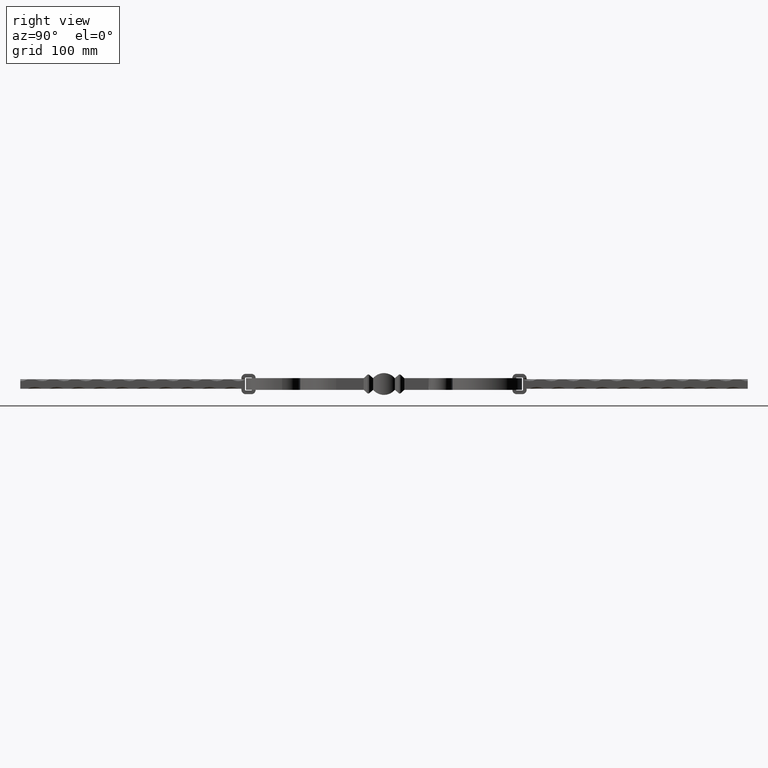
[diagram: clean part render]
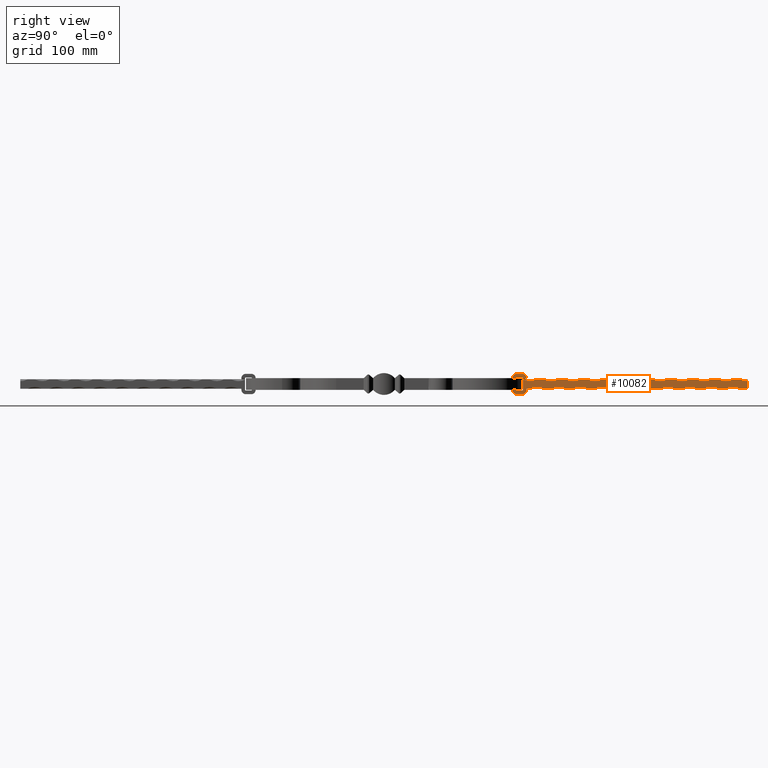
[diagram: same view with one face highlighted and labeled with its STEP entity id]
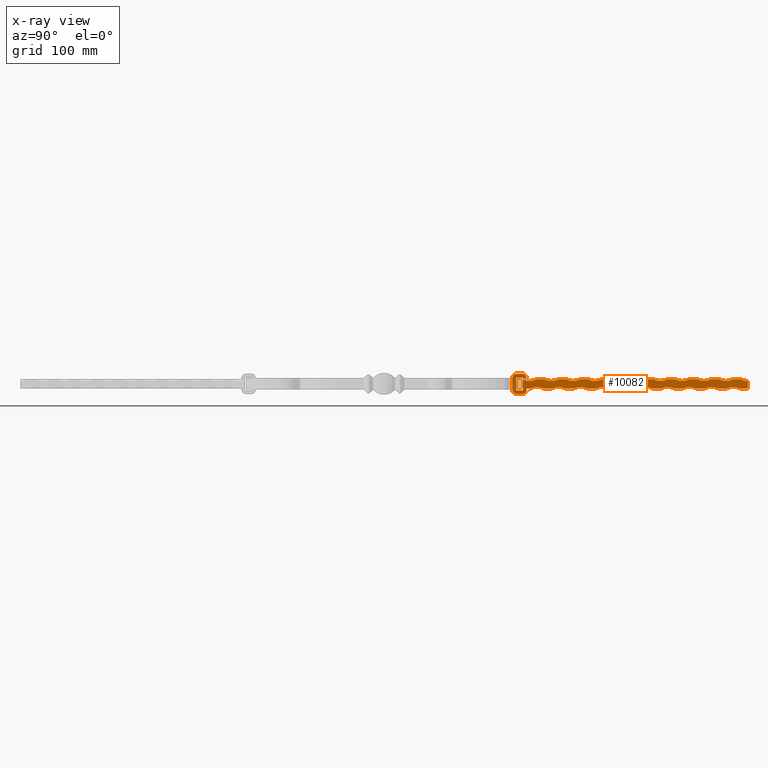
[diagram: x-ray of the same camera — body ghosted, the highlighted face saturated]
A machine part, right view. The second image highlights one B-rep face of the part: STEP entity #10082.
The next image is the same camera in x-ray: the body ghosted, the highlighted face saturated — about 0% of this face is hidden behind the body in this view.
In plain terms, the highlighted planar face has unit normal (1, 0, 0).
Its self-contained STEP definition (entity closure, byte-faithful):
#92 = LINE ( 'NONE', #16200, #7591 ) ;
#164 = VECTOR ( 'NONE', #18153, 1000.000000000000000 ) ;
#273 = ORIENTED_EDGE ( 'NONE', *, *, #17884, .F. ) ;
#304 = VERTEX_POINT ( 'NONE', #8795 ) ;
#308 = CARTESIAN_POINT ( 'NONE',  ( 6.499999999999999112, 500.0000000000000000, -6.499999999999999112 ) ) ;
#309 = VERTEX_POINT ( 'NONE', #3059 ) ;
#368 = ORIENTED_EDGE ( 'NONE', *, *, #13722, .F. ) ;
#378 = CIRCLE ( 'NONE', #2030, 21.25000000000003197 ) ;
#396 = VECTOR ( 'NONE', #4594, 1000.000000000000000 ) ;
#416 = EDGE_CURVE ( 'NONE', #17650, #3328, #7589, .T. ) ;
#487 = DIRECTION ( 'NONE',  ( 0.000000000000000000, 0.000000000000000000, -1.000000000000000000 ) ) ;
#564 = VECTOR ( 'NONE', #15362, 1000.000000000000000 ) ;
#567 = EDGE_CURVE ( 'NONE', #17401, #8542, #5588, .T. ) ;
#614 = CARTESIAN_POINT ( 'NONE',  ( 6.500000000000000888, 260.0000000000000000, 25.25000000000002842 ) ) ;
#667 = CARTESIAN_POINT ( 'NONE',  ( 6.500000000000000888, 500.0000000000000000, 6.500000000000000888 ) ) ;
#763 = ORIENTED_EDGE ( 'NONE', *, *, #11529, .F. ) ;
#780 = DIRECTION ( 'NONE',  ( -0.000000000000000000, -1.000000000000000000, -0.000000000000000000 ) ) ;
#858 = DIRECTION ( 'NONE',  ( 1.000000000000000000, 0.000000000000000000, 0.000000000000000000 ) ) ;
#925 = DIRECTION ( 'NONE',  ( -0.000000000000000000, -1.000000000000000000, -0.000000000000000000 ) ) ;
#1034 = CARTESIAN_POINT ( 'NONE',  ( 6.500000000000000000, 182.4038591061661805, -14.00000000000000178 ) ) ;
#1115 = CARTESIAN_POINT ( 'NONE',  ( 6.499999999999999112, 500.0000000000000000, -6.499999999999999112 ) ) ;
#1147 = VERTEX_POINT ( 'NONE', #10471 ) ;
#1211 = CARTESIAN_POINT ( 'NONE',  ( 6.499999999999999112, 300.0000000000000000, -25.25000000000003908 ) ) ;
#1235 = VECTOR ( 'NONE', #8582, 1000.000000000000000 ) ;
#1277 = ORIENTED_EDGE ( 'NONE', *, *, #18056, .F. ) ;
#1347 = DIRECTION ( 'NONE',  ( 1.000000000000000000, 0.000000000000000000, 0.000000000000000000 ) ) ;
#1389 = ORIENTED_EDGE ( 'NONE', *, *, #8001, .F. ) ;
#1396 = DIRECTION ( 'NONE',  ( 0.000000000000000000, 0.000000000000000000, -1.000000000000000000 ) ) ;
#1411 = AXIS2_PLACEMENT_3D ( 'NONE', #16543, #12048, #16297 ) ;
#1448 = CARTESIAN_POINT ( 'NONE',  ( 6.500000000000000888, 309.9999999999999432, 6.500000000000000888 ) ) ;
#1465 = DIRECTION ( 'NONE',  ( -0.000000000000000000, -1.000000000000000000, -0.000000000000000000 ) ) ;
#1491 = LINE ( 'NONE', #3939, #14752 ) ;
#1498 = VERTEX_POINT ( 'NONE', #15806 ) ;
#1506 = DIRECTION ( 'NONE',  ( 0.000000000000000000, 0.000000000000000000, -1.000000000000000000 ) ) ;
#1532 = DIRECTION ( 'NONE',  ( -0.000000000000000000, -1.000000000000000000, -0.000000000000000000 ) ) ;
#1548 = AXIS2_PLACEMENT_3D ( 'NONE', #1211, #11310, #1396 ) ;
#1550 = AXIS2_PLACEMENT_3D ( 'NONE', #3457, #11886, #7634 ) ;
#1575 = ORIENTED_EDGE ( 'NONE', *, *, #14396, .F. ) ;
#1617 = EDGE_LOOP ( 'NONE', ( #1277, #6197, #12843, #4069, #5487, #10638, #9542, #16096, #7744, #273, #11700, #7489, #4845, #6135, #10949, #3824, #2807, #11192, #1738, #15982, #3793, #3463, #12977, #11033, #8383, #5293, #11889, #9149, #18072, #368, #14007, #13579, #4864, #12683, #17242, #763, #7396, #6739, #1575, #15759, #8364, #12914, #17792, #1389, #6667, #7869, #18007, #9477, #17836, #15506, #5671, #15949, #9959, #12417, #14146, #11680, #6149, #2638, #12049, #8210, #7768 ) ) ;
#1626 = VERTEX_POINT ( 'NONE', #15347 ) ;
#1725 = EDGE_CURVE ( 'NONE', #3201, #11484, #12629, .T. ) ;
#1731 = CARTESIAN_POINT ( 'NONE',  ( 6.500000000000000888, 300.0000000000000000, 6.500000000000000888 ) ) ;
#1738 = ORIENTED_EDGE ( 'NONE', *, *, #5768, .T. ) ;
#1900 = DIRECTION ( 'NONE',  ( -0.000000000000000000, -1.000000000000000000, -0.000000000000000000 ) ) ;
#1914 = EDGE_CURVE ( 'NONE', #11720, #7512, #15978, .T. ) ;
#1928 = VECTOR ( 'NONE', #7137, 1000.000000000000000 ) ;
#1961 = LINE ( 'NONE', #10326, #8998 ) ;
#1981 = VECTOR ( 'NONE', #14666, 1000.000000000000000 ) ;
#1985 = CARTESIAN_POINT ( 'NONE',  ( 6.499999999999999112, 480.0000000000000000, -25.25000000000003908 ) ) ;
#2011 = VERTEX_POINT ( 'NONE', #2064 ) ;
#2030 = AXIS2_PLACEMENT_3D ( 'NONE', #16607, #3913, #10890 ) ;
#2031 = AXIS2_PLACEMENT_3D ( 'NONE', #14628, #10321, #4766 ) ;
#2064 = CARTESIAN_POINT ( 'NONE',  ( 6.500000000000000888, 370.0000000000000000, 6.500000000000000888 ) ) ;
#2091 = CARTESIAN_POINT ( 'NONE',  ( 6.499999999999999112, 420.0000000000000000, -25.25000000000003908 ) ) ;
#2097 = EDGE_CURVE ( 'NONE', #1147, #17405, #18169, .T. ) ;
#2198 = DIRECTION ( 'NONE',  ( 1.000000000000000000, 0.000000000000000000, 0.000000000000000000 ) ) ;
#2219 = EDGE_CURVE ( 'NONE', #7716, #7897, #6406, .T. ) ;
#2234 = CIRCLE ( 'NONE', #1411, 21.25000000000003553 ) ;
#2302 = CARTESIAN_POINT ( 'NONE',  ( 6.500000000000000888, 209.9999999999999716, 6.500000000000000888 ) ) ;
#2303 = EDGE_CURVE ( 'NONE', #1498, #15634, #13742, .T. ) ;
#2310 = VECTOR ( 'NONE', #6007, 1000.000000000000000 ) ;
#2354 = CIRCLE ( 'NONE', #3211, 21.25000000000003197 ) ;
#2379 = CARTESIAN_POINT ( 'NONE',  ( 6.499999999999999112, 380.0000000000000000, -6.500000000000001776 ) ) ;
#2494 = CARTESIAN_POINT ( 'NONE',  ( 6.499999999999999112, 470.0000000000000000, -6.500000000000001776 ) ) ;
#2512 = VERTEX_POINT ( 'NONE', #14570 ) ;
#2520 = AXIS2_PLACEMENT_3D ( 'NONE', #5669, #11213, #11342 ) ;
#2557 = CARTESIAN_POINT ( 'NONE',  ( 6.499999999999999112, 500.0000000000000000, -6.499999999999999112 ) ) ;
#2636 = LINE ( 'NONE', #1034, #6374 ) ;
#2638 = ORIENTED_EDGE ( 'NONE', *, *, #416, .F. ) ;
#2663 = CARTESIAN_POINT ( 'NONE',  ( 6.500000000000000888, 191.0000000000000000, 5.999999999999970690 ) ) ;
#2685 = CARTESIAN_POINT ( 'NONE',  ( 6.500000000000000888, 240.0000000000000000, 6.500000000000000888 ) ) ;
#2702 = EDGE_CURVE ( 'NONE', #10097, #15033, #2234, .T. ) ;
#2704 = DIRECTION ( 'NONE',  ( 0.000000000000000000, 0.000000000000000000, -1.000000000000000000 ) ) ;
#2807 = ORIENTED_EDGE ( 'NONE', *, *, #3780, .T. ) ;
#2817 = DIRECTION ( 'NONE',  ( 0.000000000000000000, 0.000000000000000000, -1.000000000000000000 ) ) ;
#2961 = CARTESIAN_POINT ( 'NONE',  ( 6.500000000000000000, 176.4038591061661805, 8.000000000000000000 ) ) ;
#2967 = CARTESIAN_POINT ( 'NONE',  ( 6.500000000000000888, 380.0000000000000000, 25.25000000000002842 ) ) ;
#3059 = CARTESIAN_POINT ( 'NONE',  ( 6.500000000000000000, 191.0000000000000000, -7.999999999999996447 ) ) ;
#3072 = AXIS2_PLACEMENT_3D ( 'NONE', #10271, #7422, #8538 ) ;
#3120 = CARTESIAN_POINT ( 'NONE',  ( 6.499999999999999112, 500.0000000000000000, -6.499999999999999112 ) ) ;
#3137 = CARTESIAN_POINT ( 'NONE',  ( 6.500000000000000888, 410.0000000000000000, 25.25000000000002842 ) ) ;
#3149 = VERTEX_POINT ( 'NONE', #13308 ) ;
#3153 = CIRCLE ( 'NONE', #7262, 21.25000000000003197 ) ;
#3186 = CARTESIAN_POINT ( 'NONE',  ( 6.500000000000000000, 182.4038591061661805, -8.999999999999998224 ) ) ;
#3201 = VERTEX_POINT ( 'NONE', #13611 ) ;
#3211 = AXIS2_PLACEMENT_3D ( 'NONE', #7062, #9842, #2704 ) ;
#3241 = LINE ( 'NONE', #308, #1928 ) ;
#3280 = DIRECTION ( 'NONE',  ( 0.000000000000000000, 0.000000000000000000, -1.000000000000000000 ) ) ;
#3288 = AXIS2_PLACEMENT_3D ( 'NONE', #14763, #14640, #14574 ) ;
#3295 = VERTEX_POINT ( 'NONE', #6717 ) ;
#3323 = CARTESIAN_POINT ( 'NONE',  ( 6.499999999999999112, 500.0000000000000000, -6.499999999999999112 ) ) ;
#3328 = VERTEX_POINT ( 'NONE', #10931 ) ;
#3345 = CARTESIAN_POINT ( 'NONE',  ( 6.500000000000000000, 176.4038591061661805, 7.999999999999998224 ) ) ;
#3358 = VECTOR ( 'NONE', #11698, 1000.000000000000000 ) ;
#3367 = VECTOR ( 'NONE', #1465, 1000.000000000000000 ) ;
#3394 = CARTESIAN_POINT ( 'NONE',  ( 6.500000000000000888, 195.9684936844944332, 8.614070955305894728 ) ) ;
#3443 = LINE ( 'NONE', #13232, #12028 ) ;
#3457 = CARTESIAN_POINT ( 'NONE',  ( 6.500000000000000000, 182.4038591061661805, 7.999999999999998224 ) ) ;
#3463 = ORIENTED_EDGE ( 'NONE', *, *, #6758, .F. ) ;
#3502 = DIRECTION ( 'NONE',  ( 0.000000000000000000, 0.000000000000000000, -1.000000000000000000 ) ) ;
#3740 = CARTESIAN_POINT ( 'NONE',  ( 6.500000000000000888, 399.9999999999999432, 6.500000000000000888 ) ) ;
#3780 = EDGE_CURVE ( 'NONE', #13921, #3201, #2636, .T. ) ;
#3793 = ORIENTED_EDGE ( 'NONE', *, *, #18299, .F. ) ;
#3800 = VERTEX_POINT ( 'NONE', #3740 ) ;
#3824 = ORIENTED_EDGE ( 'NONE', *, *, #15524, .T. ) ;
#3855 = VERTEX_POINT ( 'NONE', #2663 ) ;
#3866 = CIRCLE ( 'NONE', #13248, 1.000000000000000888 ) ;
#3885 = VECTOR ( 'NONE', #4706, 1000.000000000000000 ) ;
#3908 = LINE ( 'NONE', #1115, #164 ) ;
#3913 = DIRECTION ( 'NONE',  ( 1.000000000000000000, 0.000000000000000000, 0.000000000000000000 ) ) ;
#3939 = CARTESIAN_POINT ( 'NONE',  ( 6.500000000000000000, 190.0000000000000000, 9.000000000000001776 ) ) ;
#4069 = ORIENTED_EDGE ( 'NONE', *, *, #15778, .F. ) ;
#4142 = AXIS2_PLACEMENT_3D ( 'NONE', #15065, #9336, #12059 ) ;
#4178 = VERTEX_POINT ( 'NONE', #6609 ) ;
#4197 = CARTESIAN_POINT ( 'NONE',  ( 6.499999999999999112, 439.9999999999999432, -6.500000000000001776 ) ) ;
#4285 = LINE ( 'NONE', #14098, #6693 ) ;
#4293 = VERTEX_POINT ( 'NONE', #16601 ) ;
#4315 = EDGE_CURVE ( 'NONE', #15864, #1147, #11013, .T. ) ;
#4316 = VERTEX_POINT ( 'NONE', #2494 ) ;
#4414 = CIRCLE ( 'NONE', #2520, 1.000000000000000888 ) ;
#4420 = CARTESIAN_POINT ( 'NONE',  ( 6.499999999999999112, 310.0000000000000000, -6.500000000000001776 ) ) ;
#4502 = VECTOR ( 'NONE', #9211, 1000.000000000000000 ) ;
#4553 = LINE ( 'NONE', #9455, #14978 ) ;
#4569 = CARTESIAN_POINT ( 'NONE',  ( 6.500000000000000000, 182.4038591061661805, -7.999999999999996447 ) ) ;
#4594 = DIRECTION ( 'NONE',  ( -0.000000000000000000, -1.000000000000000000, -0.000000000000000000 ) ) ;
#4630 = CARTESIAN_POINT ( 'NONE',  ( 6.500000000000000000, 176.4038591061661805, -7.999999999999994671 ) ) ;
#4657 = VECTOR ( 'NONE', #925, 1000.000000000000000 ) ;
#4706 = DIRECTION ( 'NONE',  ( -0.000000000000000000, -1.000000000000000000, -0.000000000000000000 ) ) ;
#4707 = CARTESIAN_POINT ( 'NONE',  ( 6.499999999999999112, 229.9999999999999716, -6.500000000000001776 ) ) ;
#4731 = DIRECTION ( 'NONE',  ( 1.000000000000000000, 0.000000000000000000, 0.000000000000000000 ) ) ;
#4766 = DIRECTION ( 'NONE',  ( 0.000000000000000000, 0.000000000000000000, -1.000000000000000000 ) ) ;
#4804 = DIRECTION ( 'NONE',  ( -0.000000000000000000, -1.000000000000000000, -0.000000000000000000 ) ) ;
#4845 = ORIENTED_EDGE ( 'NONE', *, *, #15339, .T. ) ;
#4864 = ORIENTED_EDGE ( 'NONE', *, *, #14583, .F. ) ;
#5089 = DIRECTION ( 'NONE',  ( 0.000000000000000000, 0.000000000000000000, -1.000000000000000000 ) ) ;
#5145 = DIRECTION ( 'NONE',  ( 0.000000000000000000, 0.000000000000000000, 1.000000000000000000 ) ) ;
#5162 = DIRECTION ( 'NONE',  ( 1.000000000000000000, 0.000000000000000000, 0.000000000000000000 ) ) ;
#5216 = VERTEX_POINT ( 'NONE', #13393 ) ;
#5293 = ORIENTED_EDGE ( 'NONE', *, *, #2097, .F. ) ;
#5348 = LINE ( 'NONE', #7183, #8652 ) ;
#5417 = EDGE_CURVE ( 'NONE', #11720, #8146, #5908, .T. ) ;
#5483 = EDGE_CURVE ( 'NONE', #11416, #15864, #6113, .T. ) ;
#5487 = ORIENTED_EDGE ( 'NONE', *, *, #17119, .F. ) ;
#5555 = EDGE_CURVE ( 'NONE', #8739, #4178, #15440, .T. ) ;
#5573 = AXIS2_PLACEMENT_3D ( 'NONE', #4569, #7221, #8646 ) ;
#5588 = LINE ( 'NONE', #16493, #6024 ) ;
#5590 = CARTESIAN_POINT ( 'NONE',  ( 6.500000000000000888, 229.9999999999999716, 25.25000000000002842 ) ) ;
#5620 = EDGE_CURVE ( 'NONE', #11954, #16137, #12965, .T. ) ;
#5645 = CIRCLE ( 'NONE', #15267, 21.25000000000003553 ) ;
#5647 = VERTEX_POINT ( 'NONE', #10466 ) ;
#5669 = CARTESIAN_POINT ( 'NONE',  ( 6.500000000000000000, 190.0000000000000000, -7.999999999999996447 ) ) ;
#5671 = ORIENTED_EDGE ( 'NONE', *, *, #18211, .T. ) ;
#5768 = EDGE_CURVE ( 'NONE', #11484, #3295, #4553, .T. ) ;
#5793 = CIRCLE ( 'NONE', #12669, 21.25000000000003197 ) ;
#5806 = EDGE_CURVE ( 'NONE', #15586, #2512, #378, .T. ) ;
#5908 = CIRCLE ( 'NONE', #3072, 6.000000000000005329 ) ;
#5985 = CIRCLE ( 'NONE', #4142, 1.000000000000001776 ) ;
#5993 = VERTEX_POINT ( 'NONE', #10187 ) ;
#6006 = DIRECTION ( 'NONE',  ( 1.000000000000000000, 0.000000000000000000, 0.000000000000000000 ) ) ;
#6007 = DIRECTION ( 'NONE',  ( -0.000000000000000000, -1.000000000000000000, -0.000000000000000000 ) ) ;
#6013 = EDGE_CURVE ( 'NONE', #3800, #3149, #18065, .T. ) ;
#6024 = VECTOR ( 'NONE', #780, 1000.000000000000000 ) ;
#6093 = CARTESIAN_POINT ( 'NONE',  ( 6.499999999999999112, 500.0000000000000000, -6.499999999999999112 ) ) ;
#6113 = LINE ( 'NONE', #8849, #396 ) ;
#6125 = FACE_OUTER_BOUND ( 'NONE', #1617, .T. ) ;
#6132 = AXIS2_PLACEMENT_3D ( 'NONE', #2091, #7806, #14768 ) ;
#6135 = ORIENTED_EDGE ( 'NONE', *, *, #13155, .T. ) ;
#6149 = ORIENTED_EDGE ( 'NONE', *, *, #12653, .T. ) ;
#6161 = VERTEX_POINT ( 'NONE', #15305 ) ;
#6197 = ORIENTED_EDGE ( 'NONE', *, *, #9688, .F. ) ;
#6218 = AXIS2_PLACEMENT_3D ( 'NONE', #9343, #13509, #5089 ) ;
#6233 = EDGE_CURVE ( 'NONE', #304, #10097, #7644, .T. ) ;
#6258 = VERTEX_POINT ( 'NONE', #3186 ) ;
#6373 = AXIS2_PLACEMENT_3D ( 'NONE', #6891, #16823, #11229 ) ;
#6374 = VECTOR ( 'NONE', #6683, 1000.000000000000000 ) ;
#6406 = LINE ( 'NONE', #11949, #3358 ) ;
#6459 = VERTEX_POINT ( 'NONE', #7949 ) ;
#6460 = CARTESIAN_POINT ( 'NONE',  ( 6.500000000000000888, 199.9999999999999432, -12.25000000000003020 ) ) ;
#6609 = CARTESIAN_POINT ( 'NONE',  ( 6.499999999999999112, 370.0000000000000000, -6.500000000000001776 ) ) ;
#6667 = ORIENTED_EDGE ( 'NONE', *, *, #12379, .T. ) ;
#6683 = DIRECTION ( 'NONE',  ( 0.000000000000000000, 1.000000000000000000, 4.567380990484190297E-16 ) ) ;
#6693 = VECTOR ( 'NONE', #18226, 1000.000000000000000 ) ;
#6717 = CARTESIAN_POINT ( 'NONE',  ( 6.500000000000000000, 196.0000000000000000, -6.499999999999999112 ) ) ;
#6739 = ORIENTED_EDGE ( 'NONE', *, *, #13549, .F. ) ;
#6758 = EDGE_CURVE ( 'NONE', #15033, #17959, #7867, .T. ) ;
#6796 = VERTEX_POINT ( 'NONE', #13220 ) ;
#6848 = CARTESIAN_POINT ( 'NONE',  ( 6.499999999999999112, 449.9999999999999432, -25.25000000000003908 ) ) ;
#6857 = CARTESIAN_POINT ( 'NONE',  ( 6.499999999999999112, 410.0000000000000000, -6.500000000000001776 ) ) ;
#6891 = CARTESIAN_POINT ( 'NONE',  ( 6.500000000000000888, 470.0000000000000000, 25.25000000000002842 ) ) ;
#6893 = EDGE_CURVE ( 'NONE', #2512, #5216, #3908, .T. ) ;
#6943 = VERTEX_POINT ( 'NONE', #9659 ) ;
#7047 = EDGE_CURVE ( 'NONE', #17401, #1626, #2354, .T. ) ;
#7062 = CARTESIAN_POINT ( 'NONE',  ( 6.500000000000000888, 319.9999999999999432, 25.25000000000002842 ) ) ;
#7137 = DIRECTION ( 'NONE',  ( -0.000000000000000000, -1.000000000000000000, -0.000000000000000000 ) ) ;
#7160 = AXIS2_PLACEMENT_3D ( 'NONE', #5590, #7235, #2817 ) ;
#7183 = CARTESIAN_POINT ( 'NONE',  ( 6.500000000000000000, 191.0000000000000000, -7.999999999999996447 ) ) ;
#7221 = DIRECTION ( 'NONE',  ( 1.000000000000000000, 0.000000000000000000, 0.000000000000000000 ) ) ;
#7235 = DIRECTION ( 'NONE',  ( 1.000000000000000000, 0.000000000000000000, 0.000000000000000000 ) ) ;
#7262 = AXIS2_PLACEMENT_3D ( 'NONE', #17762, #2198, #3502 ) ;
#7275 = CARTESIAN_POINT ( 'NONE',  ( 6.500000000000000000, 181.4038591061661805, 7.999999999999998224 ) ) ;
#7301 = EDGE_CURVE ( 'NONE', #15586, #6161, #18329, .T. ) ;
#7392 = DIRECTION ( 'NONE',  ( 0.000000000000000000, 0.000000000000000000, -1.000000000000000000 ) ) ;
#7396 = ORIENTED_EDGE ( 'NONE', *, *, #13747, .F. ) ;
#7402 = EDGE_CURVE ( 'NONE', #6796, #7699, #5985, .T. ) ;
#7422 = DIRECTION ( 'NONE',  ( 1.000000000000000000, 0.000000000000000000, 0.000000000000000000 ) ) ;
#7459 = CARTESIAN_POINT ( 'NONE',  ( 6.500000000000000000, 182.4038591061661805, -14.00000000000000178 ) ) ;
#7489 = ORIENTED_EDGE ( 'NONE', *, *, #5417, .T. ) ;
#7512 = VERTEX_POINT ( 'NONE', #10891 ) ;
#7558 = DIRECTION ( 'NONE',  ( -0.000000000000000000, -1.000000000000000000, -0.000000000000000000 ) ) ;
#7566 = VERTEX_POINT ( 'NONE', #15309 ) ;
#7589 = CIRCLE ( 'NONE', #16875, 21.25000000000003197 ) ;
#7591 = VECTOR ( 'NONE', #15139, 1000.000000000000000 ) ;
#7634 = DIRECTION ( 'NONE',  ( 0.000000000000000000, 0.000000000000000000, -1.000000000000000000 ) ) ;
#7644 = LINE ( 'NONE', #3120, #3885 ) ;
#7687 = DIRECTION ( 'NONE',  ( -0.000000000000000000, -1.000000000000000000, -0.000000000000000000 ) ) ;
#7699 = VERTEX_POINT ( 'NONE', #13176 ) ;
#7716 = VERTEX_POINT ( 'NONE', #12925 ) ;
#7744 = ORIENTED_EDGE ( 'NONE', *, *, #12516, .F. ) ;
#7745 = CARTESIAN_POINT ( 'NONE',  ( 6.499999999999999112, 500.0000000000000000, -6.499999999999999112 ) ) ;
#7768 = ORIENTED_EDGE ( 'NONE', *, *, #2219, .T. ) ;
#7806 = DIRECTION ( 'NONE',  ( 1.000000000000000000, 0.000000000000000000, 0.000000000000000000 ) ) ;
#7856 = CARTESIAN_POINT ( 'NONE',  ( 6.500000000000000000, 190.0000000000000000, -7.999999999999996447 ) ) ;
#7867 = LINE ( 'NONE', #6093, #8537 ) ;
#7869 = ORIENTED_EDGE ( 'NONE', *, *, #15125, .F. ) ;
#7897 = VERTEX_POINT ( 'NONE', #2302 ) ;
#7910 = CARTESIAN_POINT ( 'NONE',  ( 6.499999999999999112, 250.0000000000000000, -6.500000000000001776 ) ) ;
#7924 = VECTOR ( 'NONE', #13565, 1000.000000000000000 ) ;
#7949 = CARTESIAN_POINT ( 'NONE',  ( 6.500000000000000888, 420.0000000000000000, 6.500000000000000888 ) ) ;
#8001 = EDGE_CURVE ( 'NONE', #17455, #6161, #13720, .T. ) ;
#8034 = EDGE_CURVE ( 'NONE', #2011, #3149, #13951, .T. ) ;
#8098 = AXIS2_PLACEMENT_3D ( 'NONE', #15505, #1347, #15635 ) ;
#8104 = VECTOR ( 'NONE', #7687, 1000.000000000000000 ) ;
#8126 = AXIS2_PLACEMENT_3D ( 'NONE', #6848, #11069, #12618 ) ;
#8146 = VERTEX_POINT ( 'NONE', #15908 ) ;
#8153 = AXIS2_PLACEMENT_3D ( 'NONE', #2967, #11472, #1506 ) ;
#8210 = ORIENTED_EDGE ( 'NONE', *, *, #10394, .F. ) ;
#8321 = CIRCLE ( 'NONE', #8098, 21.25000000000003553 ) ;
#8326 = DIRECTION ( 'NONE',  ( 0.000000000000000000, -1.000000000000000000, -9.134761980968380593E-16 ) ) ;
#8364 = ORIENTED_EDGE ( 'NONE', *, *, #6893, .F. ) ;
#8383 = ORIENTED_EDGE ( 'NONE', *, *, #12021, .F. ) ;
#8473 = EDGE_CURVE ( 'NONE', #9736, #309, #4414, .T. ) ;
#8478 = CARTESIAN_POINT ( 'NONE',  ( 6.499999999999999112, 400.0000000000000000, -6.500000000000001776 ) ) ;
#8537 = VECTOR ( 'NONE', #4804, 1000.000000000000000 ) ;
#8538 = DIRECTION ( 'NONE',  ( 0.000000000000000000, 0.000000000000000000, -1.000000000000000000 ) ) ;
#8542 = VERTEX_POINT ( 'NONE', #1731 ) ;
#8582 = DIRECTION ( 'NONE',  ( 0.000000000000000000, 0.000000000000000000, -1.000000000000000000 ) ) ;
#8640 = DIRECTION ( 'NONE',  ( 1.000000000000000000, 0.000000000000000000, 0.000000000000000000 ) ) ;
#8646 = DIRECTION ( 'NONE',  ( 0.000000000000000000, 0.000000000000000000, -1.000000000000000000 ) ) ;
#8652 = VECTOR ( 'NONE', #14333, 1000.000000000000000 ) ;
#8666 = CIRCLE ( 'NONE', #13624, 6.000000000000005329 ) ;
#8739 = VERTEX_POINT ( 'NONE', #2379 ) ;
#8744 = EDGE_CURVE ( 'NONE', #1498, #1626, #17463, .T. ) ;
#8795 = CARTESIAN_POINT ( 'NONE',  ( 6.499999999999999112, 260.0000000000000000, -6.500000000000001776 ) ) ;
#8849 = CARTESIAN_POINT ( 'NONE',  ( 6.499999999999999112, 500.0000000000000000, -6.499999999999999112 ) ) ;
#8897 = DIRECTION ( 'NONE',  ( 0.000000000000000000, 0.000000000000000000, -1.000000000000000000 ) ) ;
#8910 = CIRCLE ( 'NONE', #9919, 21.25000000000003553 ) ;
#8926 = DIRECTION ( 'NONE',  ( 1.000000000000000000, 0.000000000000000000, 0.000000000000000000 ) ) ;
#8998 = VECTOR ( 'NONE', #1900, 1000.000000000000000 ) ;
#9131 = CARTESIAN_POINT ( 'NONE',  ( 6.500000000000000000, 182.4038591061661805, 13.99999999999999822 ) ) ;
#9137 = CIRCLE ( 'NONE', #17768, 21.25000000000003197 ) ;
#9149 = ORIENTED_EDGE ( 'NONE', *, *, #5483, .F. ) ;
#9210 = VECTOR ( 'NONE', #7558, 1000.000000000000000 ) ;
#9211 = DIRECTION ( 'NONE',  ( -0.000000000000000000, -1.000000000000000000, -0.000000000000000000 ) ) ;
#9304 = CIRCLE ( 'NONE', #12966, 21.25000000000003553 ) ;
#9336 = DIRECTION ( 'NONE',  ( 1.000000000000000000, 0.000000000000000000, 0.000000000000000000 ) ) ;
#9343 = CARTESIAN_POINT ( 'NONE',  ( 6.500000000000000888, 350.0000000000000000, 25.25000000000002842 ) ) ;
#9410 = CARTESIAN_POINT ( 'NONE',  ( 6.499999999999999112, 390.0000000000000000, -25.25000000000003908 ) ) ;
#9455 = CARTESIAN_POINT ( 'NONE',  ( 6.500000000000000000, 196.0000000000000000, -7.999999999999994671 ) ) ;
#9477 = ORIENTED_EDGE ( 'NONE', *, *, #15975, .F. ) ;
#9490 = VERTEX_POINT ( 'NONE', #9131 ) ;
#9542 = ORIENTED_EDGE ( 'NONE', *, *, #7402, .F. ) ;
#9548 = EDGE_CURVE ( 'NONE', #13043, #18297, #15240, .T. ) ;
#9553 = CIRCLE ( 'NONE', #5573, 1.000000000000000888 ) ;
#9564 = CIRCLE ( 'NONE', #2031, 21.25000000000003197 ) ;
#9595 = VECTOR ( 'NONE', #14550, 1000.000000000000000 ) ;
#9615 = VERTEX_POINT ( 'NONE', #10847 ) ;
#9659 = CARTESIAN_POINT ( 'NONE',  ( 6.499999999999999112, 350.0000000000000000, -6.500000000000001776 ) ) ;
#9688 = EDGE_CURVE ( 'NONE', #309, #3855, #15694, .T. ) ;
#9736 = VERTEX_POINT ( 'NONE', #12580 ) ;
#9743 = LINE ( 'NONE', #15617, #3367 ) ;
#9842 = DIRECTION ( 'NONE',  ( 1.000000000000000000, 0.000000000000000000, 0.000000000000000000 ) ) ;
#9919 = AXIS2_PLACEMENT_3D ( 'NONE', #9410, #5162, #15078 ) ;
#9946 = CARTESIAN_POINT ( 'NONE',  ( 6.500000000000000888, 500.0000000000000000, 6.500000000000000888 ) ) ;
#9959 = ORIENTED_EDGE ( 'NONE', *, *, #8744, .T. ) ;
#9983 = CARTESIAN_POINT ( 'NONE',  ( 6.499999999999999112, 280.0000000000000000, -6.500000000000001776 ) ) ;
#10011 = CIRCLE ( 'NONE', #10523, 21.25000000000003553 ) ;
#10016 = VERTEX_POINT ( 'NONE', #11936 ) ;
#10070 = CARTESIAN_POINT ( 'NONE',  ( 6.499999999999999112, 199.9999999999999432, -6.500000000000001776 ) ) ;
#10082 = ADVANCED_FACE ( 'NONE', ( #6125 ), #16427, .T. ) ;
#10097 = VERTEX_POINT ( 'NONE', #7910 ) ;
#10145 = VERTEX_POINT ( 'NONE', #10946 ) ;
#10163 = CARTESIAN_POINT ( 'NONE',  ( 6.500000000000000000, 190.0000000000000000, 8.000000000000000000 ) ) ;
#10187 = CARTESIAN_POINT ( 'NONE',  ( 6.499999999999999112, 339.9999999999999432, -6.500000000000001776 ) ) ;
#10237 = LINE ( 'NONE', #10324, #2310 ) ;
#10271 = CARTESIAN_POINT ( 'NONE',  ( 6.500000000000000000, 190.0000000000000000, 8.000000000000000000 ) ) ;
#10321 = DIRECTION ( 'NONE',  ( 1.000000000000000000, 0.000000000000000000, 0.000000000000000000 ) ) ;
#10324 = CARTESIAN_POINT ( 'NONE',  ( 6.499999999999999112, 500.0000000000000000, -6.499999999999999112 ) ) ;
#10326 = CARTESIAN_POINT ( 'NONE',  ( 6.499999999999999112, 500.0000000000000000, -6.499999999999999112 ) ) ;
#10350 = DIRECTION ( 'NONE',  ( 0.000000000000000000, 0.000000000000000000, -1.000000000000000000 ) ) ;
#10364 = DIRECTION ( 'NONE',  ( 1.000000000000000000, 0.000000000000000000, 0.000000000000000000 ) ) ;
#10394 = EDGE_CURVE ( 'NONE', #7716, #14780, #12301, .T. ) ;
#10397 = EDGE_CURVE ( 'NONE', #4178, #6943, #8321, .T. ) ;
#10461 = CIRCLE ( 'NONE', #16002, 21.25000000000003553 ) ;
#10466 = CARTESIAN_POINT ( 'NONE',  ( 6.500000000000000888, 449.9999999999999432, 6.500000000000000888 ) ) ;
#10471 = CARTESIAN_POINT ( 'NONE',  ( 6.499999999999999112, 290.0000000000000000, -6.500000000000001776 ) ) ;
#10523 = AXIS2_PLACEMENT_3D ( 'NONE', #1985, #8926, #10350 ) ;
#10571 = EDGE_CURVE ( 'NONE', #5216, #7566, #1961, .T. ) ;
#10638 = ORIENTED_EDGE ( 'NONE', *, *, #12540, .F. ) ;
#10666 = CARTESIAN_POINT ( 'NONE',  ( 6.499999999999992895, 490.0000000000000000, 6.500000000000018652 ) ) ;
#10847 = CARTESIAN_POINT ( 'NONE',  ( 6.500000000000000888, 429.9999999999999432, 6.500000000000000888 ) ) ;
#10862 = DIRECTION ( 'NONE',  ( -0.000000000000000000, -1.000000000000000000, -0.000000000000000000 ) ) ;
#10890 = DIRECTION ( 'NONE',  ( 0.000000000000000000, 0.000000000000000000, -1.000000000000000000 ) ) ;
#10891 = CARTESIAN_POINT ( 'NONE',  ( 6.500000000000000000, 191.0000000000000000, 7.000000000000028422 ) ) ;
#10931 = CARTESIAN_POINT ( 'NONE',  ( 6.500000000000000888, 270.0000000000000000, 6.500000000000000888 ) ) ;
#10946 = CARTESIAN_POINT ( 'NONE',  ( 6.500000000000000888, 279.9999999999999432, 6.500000000000000888 ) ) ;
#10949 = ORIENTED_EDGE ( 'NONE', *, *, #9548, .T. ) ;
#11013 = CIRCLE ( 'NONE', #1548, 21.25000000000003553 ) ;
#11033 = ORIENTED_EDGE ( 'NONE', *, *, #6233, .F. ) ;
#11069 = DIRECTION ( 'NONE',  ( 1.000000000000000000, 0.000000000000000000, 0.000000000000000000 ) ) ;
#11156 = CARTESIAN_POINT ( 'NONE',  ( 6.500000000000000000, 182.4038591061661805, -8.999999999999998224 ) ) ;
#11192 = ORIENTED_EDGE ( 'NONE', *, *, #1725, .T. ) ;
#11210 = DIRECTION ( 'NONE',  ( 0.000000000000000000, 1.000000000000000000, -2.283690495242095148E-16 ) ) ;
#11213 = DIRECTION ( 'NONE',  ( 1.000000000000000000, 0.000000000000000000, 0.000000000000000000 ) ) ;
#11229 = DIRECTION ( 'NONE',  ( 0.000000000000000000, 0.000000000000000000, -1.000000000000000000 ) ) ;
#11310 = DIRECTION ( 'NONE',  ( 1.000000000000000000, 0.000000000000000000, 0.000000000000000000 ) ) ;
#11342 = DIRECTION ( 'NONE',  ( 0.000000000000000000, 0.000000000000000000, -1.000000000000000000 ) ) ;
#11350 = VERTEX_POINT ( 'NONE', #17621 ) ;
#11372 = DIRECTION ( 'NONE',  ( 0.000000000000000000, 0.000000000000000000, -1.000000000000000000 ) ) ;
#11416 = VERTEX_POINT ( 'NONE', #13782 ) ;
#11423 = EDGE_CURVE ( 'NONE', #12955, #6796, #1491, .T. ) ;
#11472 = DIRECTION ( 'NONE',  ( 1.000000000000000000, 0.000000000000000000, 0.000000000000000000 ) ) ;
#11484 = VERTEX_POINT ( 'NONE', #15522 ) ;
#11518 = VECTOR ( 'NONE', #11210, 1000.000000000000000 ) ;
#11529 = EDGE_CURVE ( 'NONE', #14181, #11954, #3241, .T. ) ;
#11573 = DIRECTION ( 'NONE',  ( 1.000000000000000000, 0.000000000000000000, 0.000000000000000000 ) ) ;
#11680 = ORIENTED_EDGE ( 'NONE', *, *, #14981, .F. ) ;
#11686 = CARTESIAN_POINT ( 'NONE',  ( 6.499999999999999112, 219.9999999999999716, -6.500000000000001776 ) ) ;
#11698 = DIRECTION ( 'NONE',  ( -0.000000000000000000, -1.000000000000000000, -0.000000000000000000 ) ) ;
#11700 = ORIENTED_EDGE ( 'NONE', *, *, #1914, .F. ) ;
#11720 = VERTEX_POINT ( 'NONE', #3394 ) ;
#11739 = CARTESIAN_POINT ( 'NONE',  ( 6.499999999999999112, 430.0000000000000000, -6.500000000000001776 ) ) ;
#11784 = LINE ( 'NONE', #7745, #4502 ) ;
#11886 = DIRECTION ( 'NONE',  ( 1.000000000000000000, 0.000000000000000000, 0.000000000000000000 ) ) ;
#11889 = ORIENTED_EDGE ( 'NONE', *, *, #4315, .F. ) ;
#11936 = CARTESIAN_POINT ( 'NONE',  ( 6.500000000000000000, 181.4038591061661805, -7.999999999999996447 ) ) ;
#11949 = CARTESIAN_POINT ( 'NONE',  ( 6.500000000000000888, 500.0000000000000000, 6.500000000000000888 ) ) ;
#11954 = VERTEX_POINT ( 'NONE', #11739 ) ;
#12021 = EDGE_CURVE ( 'NONE', #17405, #304, #5645, .T. ) ;
#12025 = DIRECTION ( 'NONE',  ( 0.000000000000000000, 0.000000000000000000, -1.000000000000000000 ) ) ;
#12028 = VECTOR ( 'NONE', #17683, 1000.000000000000000 ) ;
#12048 = DIRECTION ( 'NONE',  ( 1.000000000000000000, 0.000000000000000000, 0.000000000000000000 ) ) ;
#12049 = ORIENTED_EDGE ( 'NONE', *, *, #17225, .T. ) ;
#12059 = DIRECTION ( 'NONE',  ( 0.000000000000000000, 0.000000000000000000, -1.000000000000000000 ) ) ;
#12097 = CARTESIAN_POINT ( 'NONE',  ( 6.500000000000000888, 439.9999999999999432, 25.25000000000002842 ) ) ;
#12301 = CIRCLE ( 'NONE', #7160, 21.25000000000003197 ) ;
#12309 = CARTESIAN_POINT ( 'NONE',  ( 6.500000000000000888, 249.9999999999999716, 6.500000000000000888 ) ) ;
#12379 = EDGE_CURVE ( 'NONE', #17455, #5647, #3443, .T. ) ;
#12417 = ORIENTED_EDGE ( 'NONE', *, *, #7047, .F. ) ;
#12516 = EDGE_CURVE ( 'NONE', #4293, #12955, #3866, .T. ) ;
#12540 = EDGE_CURVE ( 'NONE', #7699, #10016, #13379, .T. ) ;
#12570 = DIRECTION ( 'NONE',  ( 1.000000000000000000, 0.000000000000000000, 0.000000000000000000 ) ) ;
#12580 = CARTESIAN_POINT ( 'NONE',  ( 6.500000000000000000, 190.0000000000000000, -8.999999999999998224 ) ) ;
#12618 = DIRECTION ( 'NONE',  ( 0.000000000000000000, 0.000000000000000000, -1.000000000000000000 ) ) ;
#12629 = CIRCLE ( 'NONE', #3288, 6.000000000000003553 ) ;
#12653 = EDGE_CURVE ( 'NONE', #10145, #3328, #14046, .T. ) ;
#12669 = AXIS2_PLACEMENT_3D ( 'NONE', #3137, #11573, #17230 ) ;
#12683 = ORIENTED_EDGE ( 'NONE', *, *, #13261, .F. ) ;
#12843 = ORIENTED_EDGE ( 'NONE', *, *, #8473, .F. ) ;
#12881 = VECTOR ( 'NONE', #8326, 1000.000000000000000 ) ;
#12914 = ORIENTED_EDGE ( 'NONE', *, *, #5806, .F. ) ;
#12925 = CARTESIAN_POINT ( 'NONE',  ( 6.500000000000000888, 219.9999999999999716, 6.500000000000000888 ) ) ;
#12955 = VERTEX_POINT ( 'NONE', #16816 ) ;
#12965 = CIRCLE ( 'NONE', #6132, 21.25000000000003553 ) ;
#12966 = AXIS2_PLACEMENT_3D ( 'NONE', #13045, #8640, #7392 ) ;
#12977 = ORIENTED_EDGE ( 'NONE', *, *, #2702, .F. ) ;
#13043 = VERTEX_POINT ( 'NONE', #2961 ) ;
#13045 = CARTESIAN_POINT ( 'NONE',  ( 6.499999999999999112, 209.9999999999999716, -25.25000000000003908 ) ) ;
#13155 = EDGE_CURVE ( 'NONE', #9490, #13043, #13361, .T. ) ;
#13169 = CARTESIAN_POINT ( 'NONE',  ( 6.500000000000000888, 500.0000000000000000, 6.500000000000000888 ) ) ;
#13176 = CARTESIAN_POINT ( 'NONE',  ( 6.500000000000000000, 181.4038591061661805, 7.999999999999996447 ) ) ;
#13220 = CARTESIAN_POINT ( 'NONE',  ( 6.500000000000000000, 182.4038591061661805, 9.000000000000001776 ) ) ;
#13221 = CARTESIAN_POINT ( 'NONE',  ( 6.500000000000000000, 182.4038591061661805, -7.999999999999996447 ) ) ;
#13232 = CARTESIAN_POINT ( 'NONE',  ( 6.500000000000000888, 500.0000000000000000, 6.500000000000000888 ) ) ;
#13248 = AXIS2_PLACEMENT_3D ( 'NONE', #10163, #17369, #11372 ) ;
#13261 = EDGE_CURVE ( 'NONE', #16137, #16249, #92, .T. ) ;
#13308 = CARTESIAN_POINT ( 'NONE',  ( 6.500000000000000888, 390.0000000000000000, 6.500000000000000888 ) ) ;
#13342 = EDGE_CURVE ( 'NONE', #5993, #11416, #10461, .T. ) ;
#13361 = CIRCLE ( 'NONE', #1550, 6.000000000000002665 ) ;
#13379 = LINE ( 'NONE', #7275, #1235 ) ;
#13393 = CARTESIAN_POINT ( 'NONE',  ( 6.499999999999999112, 500.0000000000000000, -6.499999999999999112 ) ) ;
#13402 = CARTESIAN_POINT ( 'NONE',  ( 6.500000000000000888, 360.0000000000000000, 6.500000000000000888 ) ) ;
#13509 = DIRECTION ( 'NONE',  ( 1.000000000000000000, 0.000000000000000000, 0.000000000000000000 ) ) ;
#13543 = DIRECTION ( 'NONE',  ( 0.000000000000000000, 0.000000000000000000, -1.000000000000000000 ) ) ;
#13549 = EDGE_CURVE ( 'NONE', #4316, #11350, #11784, .T. ) ;
#13565 = DIRECTION ( 'NONE',  ( -0.000000000000000000, -1.000000000000000000, -0.000000000000000000 ) ) ;
#13579 = ORIENTED_EDGE ( 'NONE', *, *, #5555, .F. ) ;
#13597 = CIRCLE ( 'NONE', #8126, 21.25000000000003553 ) ;
#13611 = CARTESIAN_POINT ( 'NONE',  ( 6.500000000000000000, 190.0000000000000000, -13.99999999999999822 ) ) ;
#13624 = AXIS2_PLACEMENT_3D ( 'NONE', #13221, #10364, #3280 ) ;
#13628 = CARTESIAN_POINT ( 'NONE',  ( 6.500000000000000888, 500.0000000000000000, 6.500000000000000888 ) ) ;
#13720 = CIRCLE ( 'NONE', #6373, 21.25000000000003197 ) ;
#13722 = EDGE_CURVE ( 'NONE', #6943, #5993, #14724, .T. ) ;
#13742 = CIRCLE ( 'NONE', #6218, 21.25000000000003197 ) ;
#13747 = EDGE_CURVE ( 'NONE', #11350, #14181, #13597, .T. ) ;
#13764 = LINE ( 'NONE', #11156, #11518 ) ;
#13782 = CARTESIAN_POINT ( 'NONE',  ( 6.499999999999999112, 319.9999999999999432, -6.500000000000001776 ) ) ;
#13826 = CARTESIAN_POINT ( 'NONE',  ( 6.499999999999999112, 329.9999999999999432, -25.25000000000003908 ) ) ;
#13921 = VERTEX_POINT ( 'NONE', #7459 ) ;
#13951 = CIRCLE ( 'NONE', #8153, 21.25000000000003197 ) ;
#14007 = ORIENTED_EDGE ( 'NONE', *, *, #10397, .F. ) ;
#14046 = LINE ( 'NONE', #13169, #9595 ) ;
#14098 = CARTESIAN_POINT ( 'NONE',  ( 6.500000000000000888, 500.0000000000000000, 6.500000000000000888 ) ) ;
#14146 = ORIENTED_EDGE ( 'NONE', *, *, #567, .T. ) ;
#14181 = VERTEX_POINT ( 'NONE', #4197 ) ;
#14183 = EDGE_CURVE ( 'NONE', #9615, #6459, #4285, .T. ) ;
#14326 = VECTOR ( 'NONE', #1532, 1000.000000000000000 ) ;
#14333 = DIRECTION ( 'NONE',  ( 0.000000000000000000, 0.000000000000000000, 1.000000000000000000 ) ) ;
#14353 = CARTESIAN_POINT ( 'NONE',  ( 6.500000000000000888, 459.9999999999999432, 6.500000000000000888 ) ) ;
#14396 = EDGE_CURVE ( 'NONE', #7566, #4316, #10011, .T. ) ;
#14425 = AXIS2_PLACEMENT_3D ( 'NONE', #6460, #858, #12025 ) ;
#14550 = DIRECTION ( 'NONE',  ( -0.000000000000000000, -1.000000000000000000, -0.000000000000000000 ) ) ;
#14570 = CARTESIAN_POINT ( 'NONE',  ( 6.500000000000000888, 500.0000000000000000, 4.000000000000017764 ) ) ;
#14574 = DIRECTION ( 'NONE',  ( 0.000000000000000000, 0.000000000000000000, -1.000000000000000000 ) ) ;
#14583 = EDGE_CURVE ( 'NONE', #16249, #8739, #8910, .T. ) ;
#14588 = VECTOR ( 'NONE', #18093, 1000.000000000000000 ) ;
#14628 = CARTESIAN_POINT ( 'NONE',  ( 6.500000000000000888, 290.0000000000000000, 25.25000000000002842 ) ) ;
#14640 = DIRECTION ( 'NONE',  ( 1.000000000000000000, 0.000000000000000000, 0.000000000000000000 ) ) ;
#14666 = DIRECTION ( 'NONE',  ( 0.000000000000000000, 0.000000000000000000, -1.000000000000000000 ) ) ;
#14724 = LINE ( 'NONE', #2557, #564 ) ;
#14752 = VECTOR ( 'NONE', #15274, 1000.000000000000000 ) ;
#14763 = CARTESIAN_POINT ( 'NONE',  ( 6.500000000000000000, 190.0000000000000000, -7.999999999999996447 ) ) ;
#14768 = DIRECTION ( 'NONE',  ( 0.000000000000000000, 0.000000000000000000, -1.000000000000000000 ) ) ;
#14780 = VERTEX_POINT ( 'NONE', #2685 ) ;
#14816 = VERTEX_POINT ( 'NONE', #10070 ) ;
#14978 = VECTOR ( 'NONE', #5145, 1000.000000000000000 ) ;
#14981 = EDGE_CURVE ( 'NONE', #10145, #8542, #9564, .T. ) ;
#15033 = VERTEX_POINT ( 'NONE', #4707 ) ;
#15065 = CARTESIAN_POINT ( 'NONE',  ( 6.500000000000000000, 182.4038591061661805, 7.999999999999998224 ) ) ;
#15078 = DIRECTION ( 'NONE',  ( 0.000000000000000000, 0.000000000000000000, -1.000000000000000000 ) ) ;
#15125 = EDGE_CURVE ( 'NONE', #9615, #5647, #9137, .T. ) ;
#15135 = AXIS2_PLACEMENT_3D ( 'NONE', #7856, #17770, #16365 ) ;
#15139 = DIRECTION ( 'NONE',  ( -0.000000000000000000, -1.000000000000000000, -0.000000000000000000 ) ) ;
#15240 = LINE ( 'NONE', #3345, #1981 ) ;
#15267 = AXIS2_PLACEMENT_3D ( 'NONE', #15821, #6006, #8897 ) ;
#15274 = DIRECTION ( 'NONE',  ( 0.000000000000000000, -1.000000000000000000, 0.000000000000000000 ) ) ;
#15305 = CARTESIAN_POINT ( 'NONE',  ( 6.500000000000000888, 480.0000000000000000, 6.500000000000000888 ) ) ;
#15309 = CARTESIAN_POINT ( 'NONE',  ( 6.499999999999999112, 490.0000000000000000, -6.500000000000001776 ) ) ;
#15339 = EDGE_CURVE ( 'NONE', #8146, #9490, #15798, .T. ) ;
#15347 = CARTESIAN_POINT ( 'NONE',  ( 6.500000000000000888, 329.9999999999999432, 6.500000000000000888 ) ) ;
#15362 = DIRECTION ( 'NONE',  ( -0.000000000000000000, -1.000000000000000000, -0.000000000000000000 ) ) ;
#15440 = LINE ( 'NONE', #3323, #9210 ) ;
#15505 = CARTESIAN_POINT ( 'NONE',  ( 6.499999999999999112, 360.0000000000000000, -25.25000000000003908 ) ) ;
#15506 = ORIENTED_EDGE ( 'NONE', *, *, #8034, .F. ) ;
#15522 = CARTESIAN_POINT ( 'NONE',  ( 6.500000000000000000, 196.0000000000000000, -7.999999999999994671 ) ) ;
#15524 = EDGE_CURVE ( 'NONE', #18297, #13921, #8666, .T. ) ;
#15586 = VERTEX_POINT ( 'NONE', #10666 ) ;
#15617 = CARTESIAN_POINT ( 'NONE',  ( 6.500000000000000888, 500.0000000000000000, 6.500000000000000888 ) ) ;
#15634 = VERTEX_POINT ( 'NONE', #13402 ) ;
#15635 = DIRECTION ( 'NONE',  ( 0.000000000000000000, 0.000000000000000000, -1.000000000000000000 ) ) ;
#15694 = LINE ( 'NONE', #17970, #14588 ) ;
#15759 = ORIENTED_EDGE ( 'NONE', *, *, #10571, .F. ) ;
#15778 = EDGE_CURVE ( 'NONE', #6258, #9736, #13764, .T. ) ;
#15798 = LINE ( 'NONE', #16766, #12881 ) ;
#15806 = CARTESIAN_POINT ( 'NONE',  ( 6.500000000000000888, 339.9999999999999432, 6.500000000000000888 ) ) ;
#15821 = CARTESIAN_POINT ( 'NONE',  ( 6.499999999999999112, 270.0000000000000000, -25.25000000000003908 ) ) ;
#15864 = VERTEX_POINT ( 'NONE', #4420 ) ;
#15908 = CARTESIAN_POINT ( 'NONE',  ( 6.500000000000000000, 190.0000000000000000, 14.00000000000000533 ) ) ;
#15949 = ORIENTED_EDGE ( 'NONE', *, *, #2303, .F. ) ;
#15975 = EDGE_CURVE ( 'NONE', #3800, #6459, #5793, .T. ) ;
#15978 = CIRCLE ( 'NONE', #14425, 21.25000000000003197 ) ;
#15982 = ORIENTED_EDGE ( 'NONE', *, *, #16325, .F. ) ;
#16002 = AXIS2_PLACEMENT_3D ( 'NONE', #13826, #12570, #18084 ) ;
#16096 = ORIENTED_EDGE ( 'NONE', *, *, #11423, .F. ) ;
#16137 = VERTEX_POINT ( 'NONE', #6857 ) ;
#16200 = CARTESIAN_POINT ( 'NONE',  ( 6.499999999999999112, 500.0000000000000000, -6.499999999999999112 ) ) ;
#16234 = DIRECTION ( 'NONE',  ( 1.000000000000000000, 0.000000000000000000, 0.000000000000000000 ) ) ;
#16249 = VERTEX_POINT ( 'NONE', #8478 ) ;
#16297 = DIRECTION ( 'NONE',  ( 0.000000000000000000, 0.000000000000000000, -1.000000000000000000 ) ) ;
#16325 = EDGE_CURVE ( 'NONE', #14816, #3295, #10237, .T. ) ;
#16365 = DIRECTION ( 'NONE',  ( 0.000000000000000000, 0.000000000000000000, -1.000000000000000000 ) ) ;
#16427 = PLANE ( 'NONE',  #15135 ) ;
#16493 = CARTESIAN_POINT ( 'NONE',  ( 6.500000000000000888, 500.0000000000000000, 6.500000000000000888 ) ) ;
#16543 = CARTESIAN_POINT ( 'NONE',  ( 6.499999999999999112, 240.0000000000000000, -25.25000000000003908 ) ) ;
#16601 = CARTESIAN_POINT ( 'NONE',  ( 6.500000000000000000, 191.0000000000000000, 8.000000000000000000 ) ) ;
#16607 = CARTESIAN_POINT ( 'NONE',  ( 6.499999999999992895, 500.0000000000000000, 25.25000000000004974 ) ) ;
#16766 = CARTESIAN_POINT ( 'NONE',  ( 6.500000000000000000, 190.0000000000000000, 14.00000000000000533 ) ) ;
#16816 = CARTESIAN_POINT ( 'NONE',  ( 6.500000000000000000, 190.0000000000000000, 9.000000000000001776 ) ) ;
#16823 = DIRECTION ( 'NONE',  ( 1.000000000000000000, 0.000000000000000000, 0.000000000000000000 ) ) ;
#16875 = AXIS2_PLACEMENT_3D ( 'NONE', #614, #4731, #487 ) ;
#17119 = EDGE_CURVE ( 'NONE', #10016, #6258, #9553, .T. ) ;
#17225 = EDGE_CURVE ( 'NONE', #17650, #14780, #17329, .T. ) ;
#17230 = DIRECTION ( 'NONE',  ( 0.000000000000000000, 0.000000000000000000, -1.000000000000000000 ) ) ;
#17242 = ORIENTED_EDGE ( 'NONE', *, *, #5620, .F. ) ;
#17329 = LINE ( 'NONE', #17628, #17983 ) ;
#17369 = DIRECTION ( 'NONE',  ( 1.000000000000000000, 0.000000000000000000, 0.000000000000000000 ) ) ;
#17401 = VERTEX_POINT ( 'NONE', #1448 ) ;
#17405 = VERTEX_POINT ( 'NONE', #9983 ) ;
#17455 = VERTEX_POINT ( 'NONE', #14353 ) ;
#17463 = LINE ( 'NONE', #13628, #7924 ) ;
#17621 = CARTESIAN_POINT ( 'NONE',  ( 6.499999999999999112, 459.9999999999999432, -6.500000000000001776 ) ) ;
#17628 = CARTESIAN_POINT ( 'NONE',  ( 6.500000000000000888, 500.0000000000000000, 6.500000000000000888 ) ) ;
#17650 = VERTEX_POINT ( 'NONE', #12309 ) ;
#17683 = DIRECTION ( 'NONE',  ( -0.000000000000000000, -1.000000000000000000, -0.000000000000000000 ) ) ;
#17762 = CARTESIAN_POINT ( 'NONE',  ( 6.500000000000000888, 199.9999999999999432, 25.25000000000002842 ) ) ;
#17768 = AXIS2_PLACEMENT_3D ( 'NONE', #12097, #16234, #13543 ) ;
#17770 = DIRECTION ( 'NONE',  ( 1.000000000000000000, 0.000000000000000000, 0.000000000000000000 ) ) ;
#17792 = ORIENTED_EDGE ( 'NONE', *, *, #7301, .T. ) ;
#17836 = ORIENTED_EDGE ( 'NONE', *, *, #6013, .T. ) ;
#17884 = EDGE_CURVE ( 'NONE', #7512, #4293, #5348, .T. ) ;
#17959 = VERTEX_POINT ( 'NONE', #11686 ) ;
#17970 = CARTESIAN_POINT ( 'NONE',  ( 6.500000000000000000, 191.0000000000000000, -7.999999999999996447 ) ) ;
#17983 = VECTOR ( 'NONE', #10862, 1000.000000000000000 ) ;
#18007 = ORIENTED_EDGE ( 'NONE', *, *, #14183, .T. ) ;
#18056 = EDGE_CURVE ( 'NONE', #3855, #7897, #3153, .T. ) ;
#18065 = LINE ( 'NONE', #9946, #14326 ) ;
#18072 = ORIENTED_EDGE ( 'NONE', *, *, #13342, .F. ) ;
#18084 = DIRECTION ( 'NONE',  ( 0.000000000000000000, 0.000000000000000000, -1.000000000000000000 ) ) ;
#18093 = DIRECTION ( 'NONE',  ( 0.000000000000000000, 0.000000000000000000, 1.000000000000000000 ) ) ;
#18153 = DIRECTION ( 'NONE',  ( -1.334402673828313339E-16, -0.000000000000000000, -1.000000000000000000 ) ) ;
#18159 = CARTESIAN_POINT ( 'NONE',  ( 6.499999999999999112, 500.0000000000000000, -6.499999999999999112 ) ) ;
#18169 = LINE ( 'NONE', #18159, #4657 ) ;
#18211 = EDGE_CURVE ( 'NONE', #2011, #15634, #9743, .T. ) ;
#18226 = DIRECTION ( 'NONE',  ( -0.000000000000000000, -1.000000000000000000, -0.000000000000000000 ) ) ;
#18297 = VERTEX_POINT ( 'NONE', #4630 ) ;
#18299 = EDGE_CURVE ( 'NONE', #17959, #14816, #9304, .T. ) ;
#18329 = LINE ( 'NONE', #667, #8104 ) ;